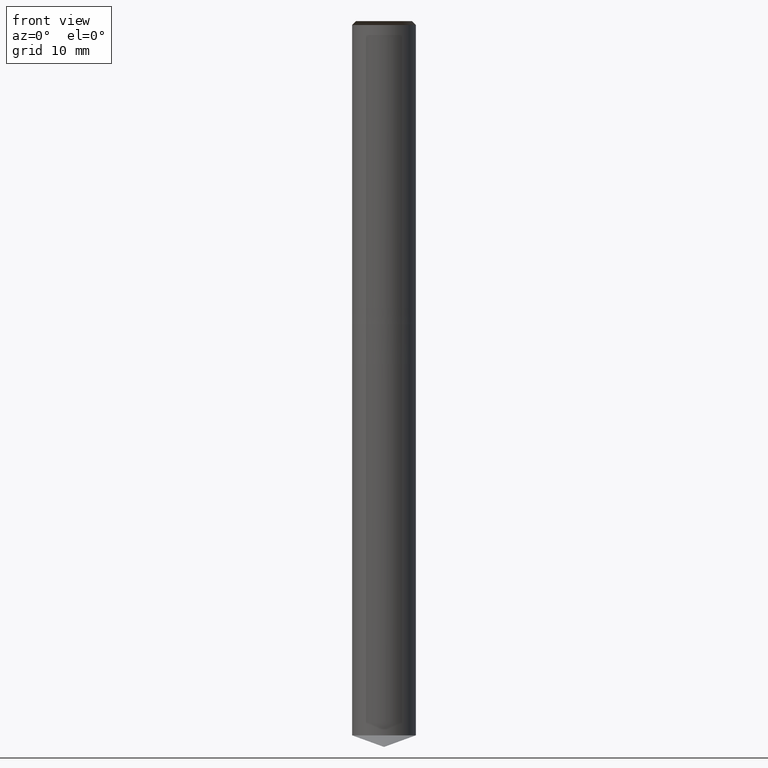
[diagram: clean part render]
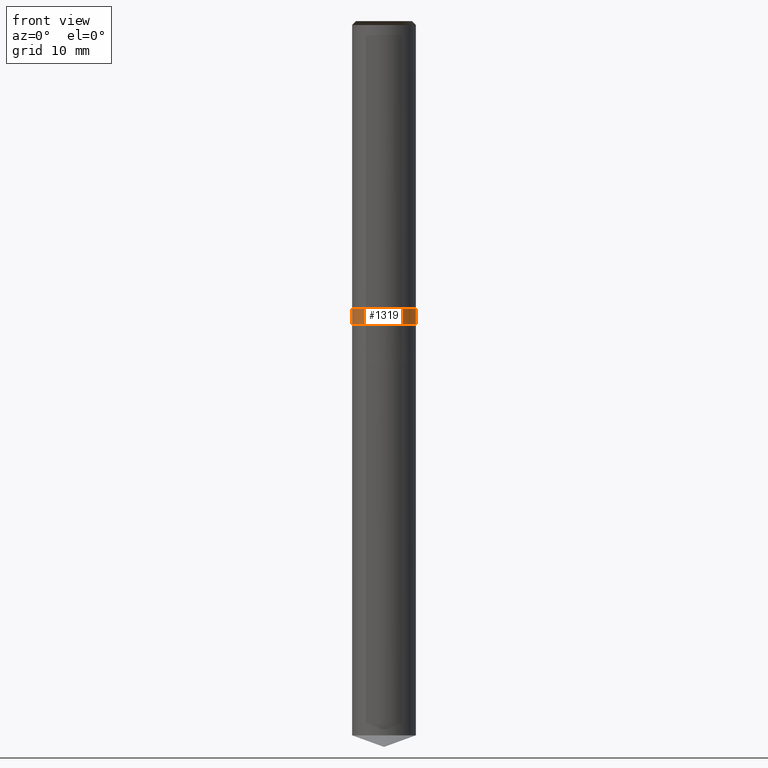
[diagram: same view with one face highlighted and labeled with its STEP entity id]
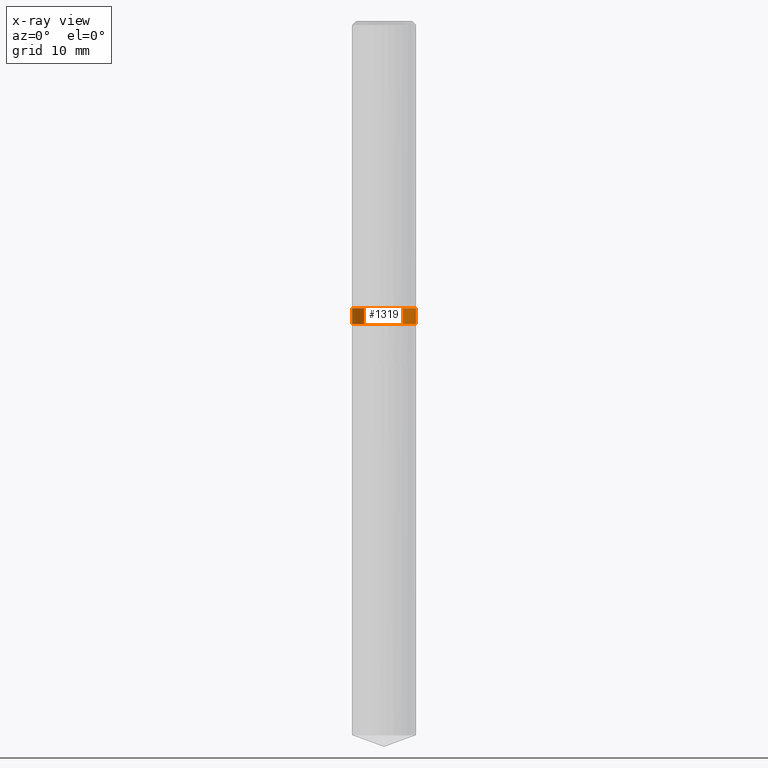
[diagram: x-ray of the same camera — body ghosted, the highlighted face saturated]
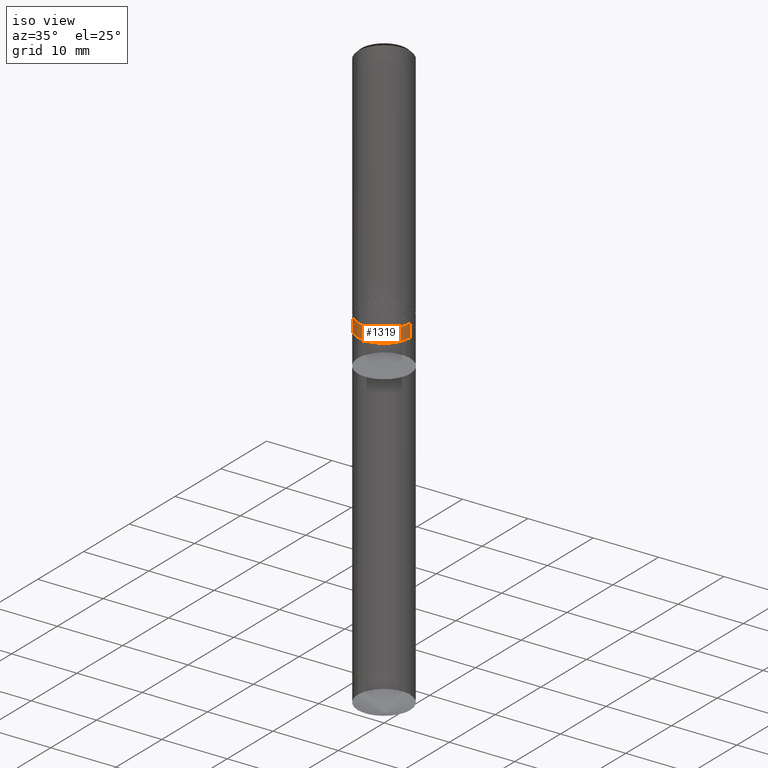
[diagram: same view with one face highlighted and labeled with its STEP entity id]
A machine part, front view. The second image highlights one B-rep face of the part: STEP entity #1319.
The next image is the same camera in x-ray: the body ghosted, the highlighted face saturated — about 0% of this face is hidden behind the body in this view.
A second angle (iso view) of the same face is appended — the face is thin or edge-on in the first view.
In plain terms, the highlighted face is a freeform B-spline surface patch.
Its self-contained STEP definition (entity closure, byte-faithful):
#1006=CARTESIAN_POINT('',(4.0,0.0,-2.0));
#1010=CARTESIAN_POINT('',(-4.0,0.0,-2.0));
#1011=CARTESIAN_POINT('',(4.0,0.0,0.0));
#1015=CARTESIAN_POINT('',(-4.0,0.0,0.0));
#1027=CARTESIAN_POINT('',(-4.0,-4.0,-2.0));
#1028=CARTESIAN_POINT('',(0.0,-4.0,-2.0));
#1029=CARTESIAN_POINT('',(4.0,-4.0,-2.0));
#1030=CARTESIAN_POINT('',(-4.0,-4.0,0.0));
#1031=CARTESIAN_POINT('',(0.0,-4.0,0.0));
#1032=CARTESIAN_POINT('',(4.0,-4.0,0.0));
#1300=(
BOUNDED_SURFACE()
B_SPLINE_SURFACE(1,2,(
(#1010,#1027,#1028,#1029,#1006),
(#1015,#1030,#1031,#1032,#1011)
), .UNSPECIFIED.,.F.,.F.,.F.)
B_SPLINE_SURFACE_WITH_KNOTS((2,2),(3,2,3),(
0.0,1.0),(
0.0,0.5,1.0), .UNSPECIFIED.)
GEOMETRIC_REPRESENTATION_ITEM()
RATIONAL_B_SPLINE_SURFACE(((1.0,0.707106781187,1.0,0.707106781187,1.0),
(1.0,0.707106781187,1.0,0.707106781187,1.0)
))
REPRESENTATION_ITEM('')
SURFACE()
);
#1301=(
BOUNDED_CURVE()
B_SPLINE_CURVE(2,(#1006,#1029,#1028,#1027,#1010),.UNSPECIFIED.,.F.,.F.)
B_SPLINE_CURVE_WITH_KNOTS((3,2,3),
(0.0,0.5,1.0),.UNSPECIFIED.)
CURVE()
GEOMETRIC_REPRESENTATION_ITEM()
RATIONAL_B_SPLINE_CURVE((1.0,0.707106781187,1.0,0.707106781187,1.0))
REPRESENTATION_ITEM('')
);
#1302=(
BOUNDED_CURVE()
B_SPLINE_CURVE(1,(#1010,#1015),.UNSPECIFIED.,.F.,.F.)
B_SPLINE_CURVE_WITH_KNOTS((2,2),
(0.0,1.0),.UNSPECIFIED.)
CURVE()
GEOMETRIC_REPRESENTATION_ITEM()
RATIONAL_B_SPLINE_CURVE((1.0,1.0))
REPRESENTATION_ITEM('')
);
#1303=(
BOUNDED_CURVE()
B_SPLINE_CURVE(2,(#1015,#1030,#1031,#1032,#1011),.UNSPECIFIED.,.F.,.F.)
B_SPLINE_CURVE_WITH_KNOTS((3,2,3),
(0.0,0.5,1.0),.UNSPECIFIED.)
CURVE()
GEOMETRIC_REPRESENTATION_ITEM()
RATIONAL_B_SPLINE_CURVE((1.0,0.707106781187,1.0,0.707106781187,1.0))
REPRESENTATION_ITEM('')
);
#1304=(
BOUNDED_CURVE()
B_SPLINE_CURVE(1,(#1011,#1006),.UNSPECIFIED.,.F.,.F.)
B_SPLINE_CURVE_WITH_KNOTS((2,2),
(0.0,1.0),.UNSPECIFIED.)
CURVE()
GEOMETRIC_REPRESENTATION_ITEM()
RATIONAL_B_SPLINE_CURVE((1.0,1.0))
REPRESENTATION_ITEM('')
);
#1305=VERTEX_POINT('',#1006);
#1306=VERTEX_POINT('',#1010);
#1307=VERTEX_POINT('',#1011);
#1308=VERTEX_POINT('',#1015);
#1309=EDGE_CURVE('',#1305,#1306,#1301,.T.);
#1310=EDGE_CURVE('',#1306,#1308,#1302,.T.);
#1311=EDGE_CURVE('',#1308,#1307,#1303,.T.);
#1312=EDGE_CURVE('',#1307,#1305,#1304,.T.);
#1313=ORIENTED_EDGE('',*,*,#1309,.T.);
#1314=ORIENTED_EDGE('',*,*,#1310,.T.);
#1315=ORIENTED_EDGE('',*,*,#1311,.T.);
#1316=ORIENTED_EDGE('',*,*,#1312,.T.);
#1317=EDGE_LOOP('',(#1313,#1314,#1315,#1316));
#1318=FACE_OUTER_BOUND('',#1317,.T.);
#1319=ADVANCED_FACE('',(#1318),#1300,.T.);